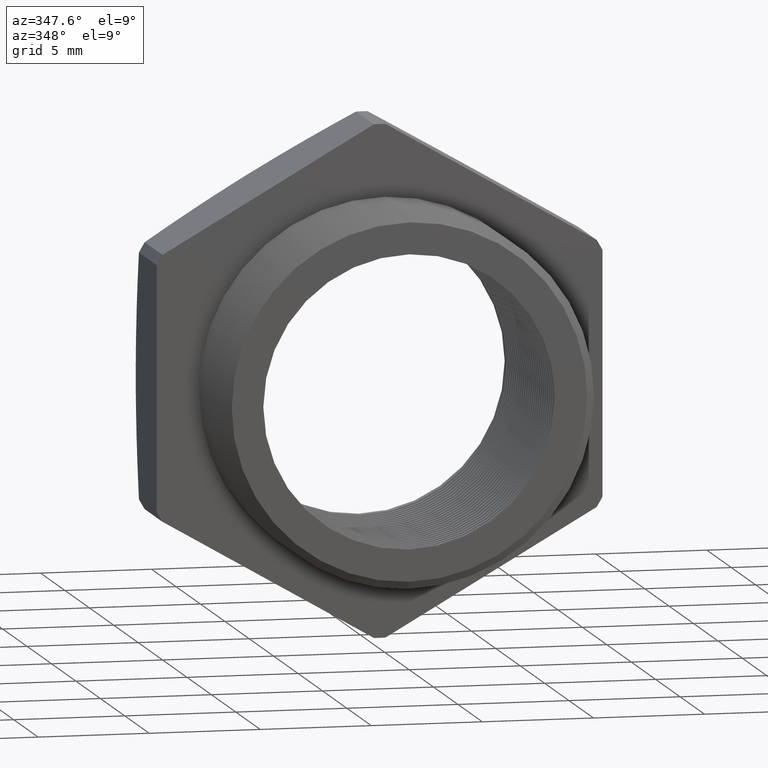
[diagram: clean part render]
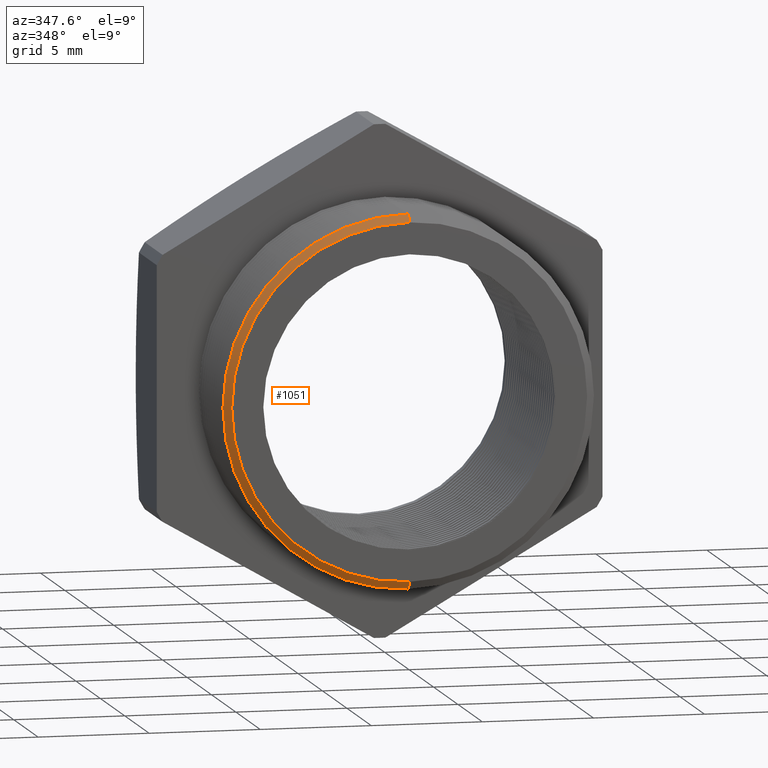
[diagram: same view with one face highlighted and labeled with its STEP entity id]
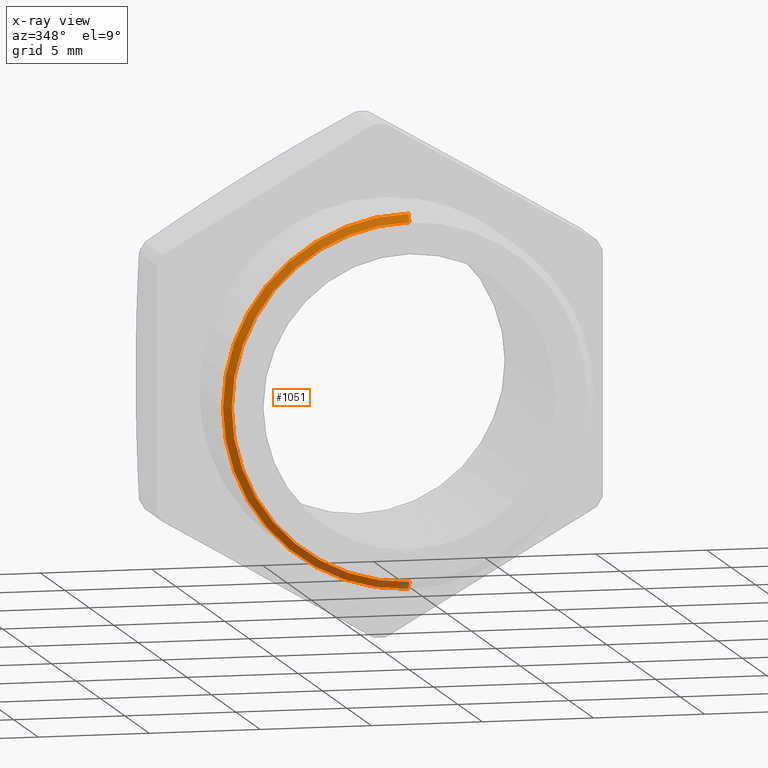
[diagram: x-ray of the same camera — body ghosted, the highlighted face saturated]
A machine part, auxiliary view. The second image highlights one B-rep face of the part: STEP entity #1051.
The next image is the same camera in x-ray: the body ghosted, the highlighted face saturated — about 0% of this face is hidden behind the body in this view.
In plain terms, the highlighted conical surface has half-angle 60 deg.
Its self-contained STEP definition (entity closure, byte-faithful):
#807 = ORIENTED_EDGE ( 'NONE', *, *, #4862, .F. ) ;
#843 = ORIENTED_EDGE ( 'NONE', *, *, #1050, .F. ) ;
#845 = ORIENTED_EDGE ( 'NONE', *, *, #6017, .T. ) ;
#846 = DIRECTION ( 'NONE',  ( 0.0000000000000000000, 0.0000000000000000000, 1.000000000000000000 ) ) ;
#847 = DIRECTION ( 'NONE',  ( -0.0000000000000000000, 1.000000000000000000, -0.0000000000000000000 ) ) ;
#848 = CARTESIAN_POINT ( 'NONE',  ( 0.0000000000000000000, 0.005554890582947971000, 0.0000000000000000000 ) ) ;
#849 = AXIS2_PLACEMENT_3D ( 'NONE', #848, #847, #846 ) ;
#851 = CONICAL_SURFACE ( 'NONE', #849, 0.3287738815610546400, 1.047197551196598700 ) ;
#852 = FACE_OUTER_BOUND ( 'NONE', #864, .T. ) ;
#853 = DIRECTION ( 'NONE',  ( 0.0000000000000000000, 0.0000000000000000000, 1.000000000000000000 ) ) ;
#854 = DIRECTION ( 'NONE',  ( -0.0000000000000000000, 1.000000000000000000, -0.0000000000000000000 ) ) ;
#855 = CARTESIAN_POINT ( 'NONE',  ( 0.0000000000000000000, 0.005554890582947971000, 0.0000000000000000000 ) ) ;
#856 = AXIS2_PLACEMENT_3D ( 'NONE', #855, #854, #853 ) ;
#861 = CIRCLE ( 'NONE', #856, 0.3287738815610546400 ) ;
#864 = EDGE_LOOP ( 'NONE', ( #807, #845, #901, #843 ) ) ;
#901 = ORIENTED_EDGE ( 'NONE', *, *, #4799, .T. ) ;
#1050 = EDGE_CURVE ( 'NONE', #4863, #4866, #861, .T. ) ;
#1051 = ADVANCED_FACE ( 'NONE', ( #852 ), #851, .T. ) ;
#1729 = VECTOR ( 'NONE', #1793, 39.37007874015748100 ) ;
#1730 = CARTESIAN_POINT ( 'NONE',  ( 0.0000000000000000000, 0.005554890582947971000, 0.3287738815610546400 ) ) ;
#1731 = LINE ( 'NONE', #1730, #1729 ) ;
#1793 = DIRECTION ( 'NONE',  ( 0.0000000000000000000, 0.4999999999999991100, 0.8660254037844391500 ) ) ;
#1878 = CARTESIAN_POINT ( 'NONE',  ( 4.026318816969966200E-017, 0.005554890582947971000, 0.3287738815610546400 ) ) ;
#1884 = CARTESIAN_POINT ( 'NONE',  ( 0.0000000000000000000, 0.005554890582947971000, -0.3287738815610546400 ) ) ;
#1885 = DIRECTION ( 'NONE',  ( 1.060575238724907500E-016, 0.4999999999999991100, -0.8660254037844391500 ) ) ;
#1886 = VECTOR ( 'NONE', #1885, 39.37007874015748100 ) ;
#1887 = CARTESIAN_POINT ( 'NONE',  ( 4.026318816969965600E-017, 0.005554890582947971000, -0.3287738815610546400 ) ) ;
#1888 = LINE ( 'NONE', #1887, #1886 ) ;
#1889 = CARTESIAN_POINT ( 'NONE',  ( 0.0000000000000000000, -0.002397463644112938200, -0.3150000000000000000 ) ) ;
#1890 = CARTESIAN_POINT ( 'NONE',  ( 3.857637417314162700E-017, -0.002397463644112938200, 0.3150000000000000000 ) ) ;
#4180 = CARTESIAN_POINT ( 'NONE',  ( 0.0000000000000000000, -0.002397463644112938200, 0.0000000000000000000 ) ) ;
#4236 = DIRECTION ( 'NONE',  ( 0.0000000000000000000, 0.0000000000000000000, 1.000000000000000000 ) ) ;
#4237 = DIRECTION ( 'NONE',  ( -0.0000000000000000000, 1.000000000000000000, -0.0000000000000000000 ) ) ;
#4238 = AXIS2_PLACEMENT_3D ( 'NONE', #4180, #4237, #4236 ) ;
#4239 = CIRCLE ( 'NONE', #4238, 0.3150000000000000000 ) ;
#4799 = EDGE_CURVE ( 'NONE', #4859, #4866, #1731, .T. ) ;
#4859 = VERTEX_POINT ( 'NONE', #1890 ) ;
#4860 = VERTEX_POINT ( 'NONE', #1889 ) ;
#4862 = EDGE_CURVE ( 'NONE', #4860, #4863, #1888, .T. ) ;
#4863 = VERTEX_POINT ( 'NONE', #1884 ) ;
#4866 = VERTEX_POINT ( 'NONE', #1878 ) ;
#6017 = EDGE_CURVE ( 'NONE', #4860, #4859, #4239, .T. ) ;